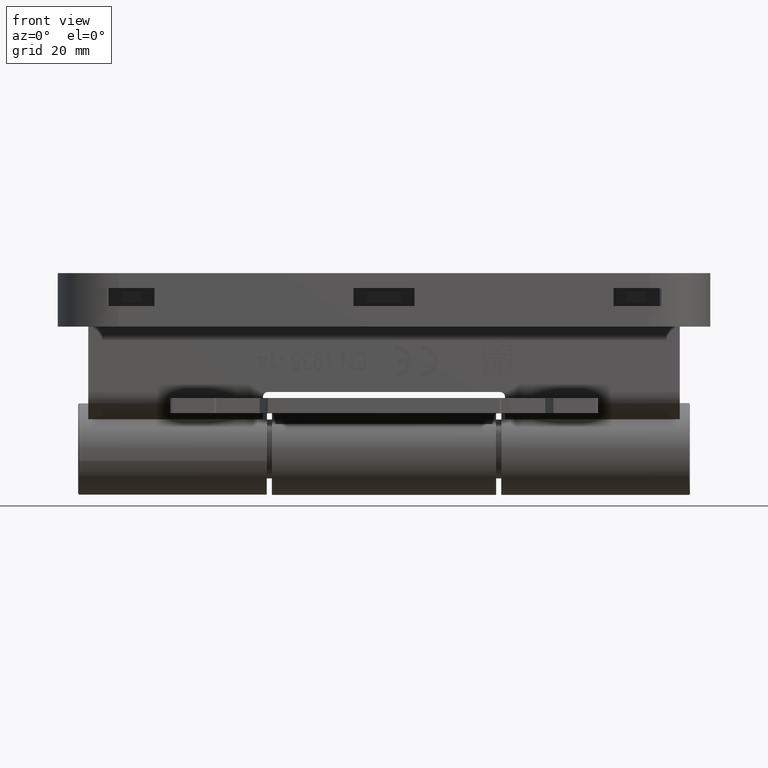
[diagram: clean part render]
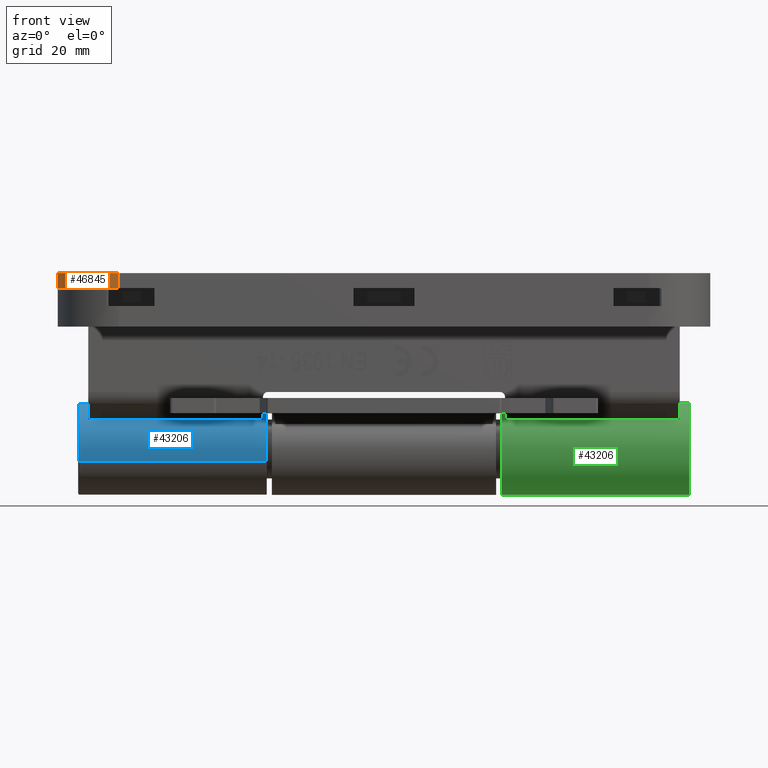
[diagram: same view with three faces highlighted in distinct colors, each labeled with its STEP entity id]
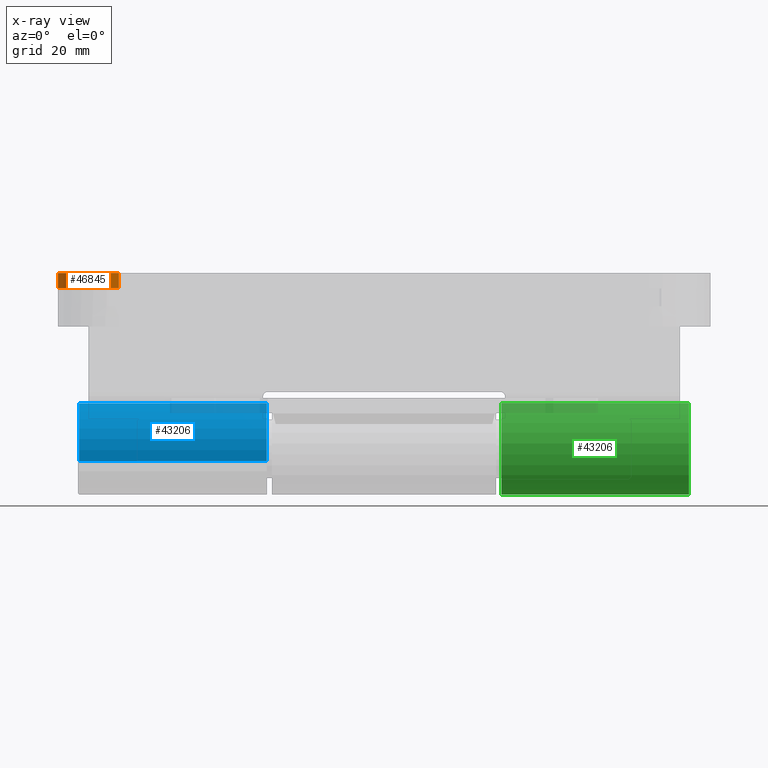
[diagram: x-ray of the same camera — body ghosted, the three highlighted faces saturated]
A machine part, front view with three faces highlighted in distinct colors.
The next image is the same camera in x-ray (body ghosted, the three faces saturated) — at least one of them is partly hidden behind the body in this view.
Their STEP definitions:

[orange] entity #46845 — the highlighted cylindrical surface (partial cylindrical patch) has radius 12 mm, axis along (-0, 0, -1).
#534 = EDGE_LOOP ( 'NONE', ( #27380, #35445, #16845, #38717 ) ) ;
#1183 = DIRECTION ( 'NONE',  ( 1.000000000000000000, 5.782411586589355667E-16, 0.000000000000000000 ) ) ;
#1203 = CARTESIAN_POINT ( 'NONE',  ( 2.775557561562891351E-14, 51.99999999999999289, 2.999999999999999112 ) ) ;
#1515 = VERTEX_POINT ( 'NONE', #1203 ) ;
#2748 = CARTESIAN_POINT ( 'NONE',  ( -11.99999999999995204, 63.99999999999997158, 2.999999999999999112 ) ) ;
#4150 = DIRECTION ( 'NONE',  ( 5.916456789157588541E-31, 1.295404630198729935E-30, 1.000000000000000000 ) ) ;
#5599 = CYLINDRICAL_SURFACE ( 'NONE', #37695, 12.00000000000000355 ) ;
#6480 = EDGE_CURVE ( 'NONE', #15949, #24367, #42023, .T. ) ;
#7132 = CIRCLE ( 'NONE', #22927, 12.00000000000000355 ) ;
#7567 = VERTEX_POINT ( 'NONE', #8538 ) ;
#8298 = CARTESIAN_POINT ( 'NONE',  ( 3.469446951953614189E-14, 51.99999999999999289, -2.760696280273786662 ) ) ;
#8538 = CARTESIAN_POINT ( 'NONE',  ( 2.775557561562891351E-14, 51.99999999999999289, 0.000000000000000000 ) ) ;
#9792 = DIRECTION ( 'NONE',  ( 5.916456789157588541E-31, 1.295404630198729935E-30, 1.000000000000000000 ) ) ;
#9996 = AXIS2_PLACEMENT_3D ( 'NONE', #37335, #9792, #13179 ) ;
#10555 = VECTOR ( 'NONE', #4150, 1000.000000000000000 ) ;
#13179 = DIRECTION ( 'NONE',  ( 1.000000000000000000, 5.782411586589355667E-16, 0.000000000000000000 ) ) ;
#14734 = VECTOR ( 'NONE', #26940, 1000.000000000000000 ) ;
#15949 = VERTEX_POINT ( 'NONE', #25667 ) ;
#16845 = ORIENTED_EDGE ( 'NONE', *, *, #29971, .F. ) ;
#21202 = CARTESIAN_POINT ( 'NONE',  ( -11.99999999999995914, 51.99999999999997158, -2.760696280273786662 ) ) ;
#22927 = AXIS2_PLACEMENT_3D ( 'NONE', #32776, #41085, #25490 ) ;
#24367 = VERTEX_POINT ( 'NONE', #2748 ) ;
#25490 = DIRECTION ( 'NONE',  ( -1.000000000000000000, -5.782411586589355667E-16, 1.224646799147347537E-16 ) ) ;
#25667 = CARTESIAN_POINT ( 'NONE',  ( -11.99999999999995559, 63.99999999999997158, 3.686287386450715076E-15 ) ) ;
#26751 = EDGE_CURVE ( 'NONE', #15949, #7567, #7132, .T. ) ;
#26940 = DIRECTION ( 'NONE',  ( 5.916456789157588541E-31, 1.295404630198729935E-30, 1.000000000000000000 ) ) ;
#27380 = ORIENTED_EDGE ( 'NONE', *, *, #6480, .T. ) ;
#29971 = EDGE_CURVE ( 'NONE', #7567, #1515, #43157, .T. ) ;
#32776 = CARTESIAN_POINT ( 'NONE',  ( -11.99999999999995914, 51.99999999999997158, 3.686287386450715076E-15 ) ) ;
#35445 = ORIENTED_EDGE ( 'NONE', *, *, #38393, .F. ) ;
#36775 = DIRECTION ( 'NONE',  ( 5.916456789157588541E-31, 1.295404630198729935E-30, 1.000000000000000000 ) ) ;
#37335 = CARTESIAN_POINT ( 'NONE',  ( -11.99999999999996270, 51.99999999999997158, 2.999999999999999112 ) ) ;
#37695 = AXIS2_PLACEMENT_3D ( 'NONE', #21202, #36775, #1183 ) ;
#38393 = EDGE_CURVE ( 'NONE', #1515, #24367, #43213, .T. ) ;
#38636 = CARTESIAN_POINT ( 'NONE',  ( -11.99999999999995204, 63.99999999999997158, -2.760696280273786662 ) ) ;
#38717 = ORIENTED_EDGE ( 'NONE', *, *, #26751, .F. ) ;
#41085 = DIRECTION ( 'NONE',  ( -1.224646799147359370E-16, -1.376982494605543984E-30, -1.000000000000000000 ) ) ;
#41206 = FACE_OUTER_BOUND ( 'NONE', #534, .T. ) ;
#42023 = LINE ( 'NONE', #38636, #14734 ) ;
#43157 = LINE ( 'NONE', #8298, #10555 ) ;
#43213 = CIRCLE ( 'NONE', #9996, 12.00000000000000355 ) ;
#46845 = ADVANCED_FACE ( 'NONE', ( #41206 ), #5599, .T. ) ;

[blue] entity #43206 — the highlighted cylindrical surface (partial cylindrical patch) has radius 9 mm, axis along (1, 0, 0).
#318 = DIRECTION ( 'NONE',  ( -1.000000000000000000, -2.457646059305950343E-16, -3.214216435727794932E-16 ) ) ;
#1443 = DIRECTION ( 'NONE',  ( -1.000000000000000000, -2.457646059305950343E-16, -3.214216435727794932E-16 ) ) ;
#4468 = DIRECTION ( 'NONE',  ( 3.854941057726237111E-16, 0.000000000000000000, 1.000000000000000000 ) ) ;
#4585 = CARTESIAN_POINT ( 'NONE',  ( 36.79999999999999716, 1.323504122493985524E-14, -8.999999999999987566 ) ) ;
#5549 = DIRECTION ( 'NONE',  ( -1.000000000000000000, -2.457646059305950343E-16, -3.214216435727794932E-16 ) ) ;
#6315 = CARTESIAN_POINT ( 'NONE',  ( 36.79999999999999716, 2.081668171172168513E-14, 9.540979117872439019E-15 ) ) ;
#6320 = CARTESIAN_POINT ( 'NONE',  ( 2.892794792155019038E-15, 0.000000000000000000, 9.000000000000005329 ) ) ;
#9108 = ORIENTED_EDGE ( 'NONE', *, *, #27924, .T. ) ;
#12524 = FACE_OUTER_BOUND ( 'NONE', #44120, .T. ) ;
#14314 = VERTEX_POINT ( 'NONE', #41698 ) ;
#17043 = CARTESIAN_POINT ( 'NONE',  ( 2.892794792155012332E-15, 1.323504122493986155E-14, -9.000000000000000000 ) ) ;
#17396 = EDGE_CURVE ( 'NONE', #14314, #36382, #25612, .T. ) ;
#18833 = AXIS2_PLACEMENT_3D ( 'NONE', #6315, #5549, #21147 ) ;
#21147 = DIRECTION ( 'NONE',  ( 0.000000000000000000, 0.000000000000000000, 1.000000000000000000 ) ) ;
#21251 = CARTESIAN_POINT ( 'NONE',  ( 25.50000000000000000, 1.497996992704707624E-14, -8.999999999999994671 ) ) ;
#22300 = ORIENTED_EDGE ( 'NONE', *, *, #17396, .T. ) ;
#24113 = VECTOR ( 'NONE', #1443, 1000.000000000000000 ) ;
#24151 = VERTEX_POINT ( 'NONE', #4585 ) ;
#24495 = VECTOR ( 'NONE', #33216, 1000.000000000000000 ) ;
#24654 = CIRCLE ( 'NONE', #18833, 9.000000000000001776 ) ;
#25132 = EDGE_CURVE ( 'NONE', #39813, #36382, #50146, .T. ) ;
#25612 = LINE ( 'NONE', #26124, #24113 ) ;
#26124 = CARTESIAN_POINT ( 'NONE',  ( 25.50000000000000355, 1.387778780781445676E-14, 9.000000000000010658 ) ) ;
#26287 = CARTESIAN_POINT ( 'NONE',  ( 0.000000000000000000, 0.000000000000000000, 0.000000000000000000 ) ) ;
#27924 = EDGE_CURVE ( 'NONE', #24151, #14314, #24654, .T. ) ;
#28591 = AXIS2_PLACEMENT_3D ( 'NONE', #26287, #49383, #42134 ) ;
#33216 = DIRECTION ( 'NONE',  ( -1.000000000000000000, -2.457646059305950343E-16, -3.214216435727794932E-16 ) ) ;
#35101 = AXIS2_PLACEMENT_3D ( 'NONE', #35918, #318, #4468 ) ;
#35918 = CARTESIAN_POINT ( 'NONE',  ( 25.50000000000000355, 1.387778780781445676E-14, 9.540979117872439019E-15 ) ) ;
#36382 = VERTEX_POINT ( 'NONE', #6320 ) ;
#39813 = VERTEX_POINT ( 'NONE', #17043 ) ;
#40077 = CYLINDRICAL_SURFACE ( 'NONE', #35101, 9.000000000000001776 ) ;
#40489 = LINE ( 'NONE', #21251, #24495 ) ;
#41698 = CARTESIAN_POINT ( 'NONE',  ( 36.79999999999999716, 2.081668171172168513E-14, 9.000000000000010658 ) ) ;
#42134 = DIRECTION ( 'NONE',  ( 3.214216435727796904E-16, 0.000000000000000000, 1.000000000000000000 ) ) ;
#43206 = ADVANCED_FACE ( 'NONE', ( #12524 ), #40077, .T. ) ;
#44120 = EDGE_LOOP ( 'NONE', ( #47086, #9108, #22300, #45035 ) ) ;
#45035 = ORIENTED_EDGE ( 'NONE', *, *, #25132, .F. ) ;
#45298 = EDGE_CURVE ( 'NONE', #24151, #39813, #40489, .T. ) ;
#47086 = ORIENTED_EDGE ( 'NONE', *, *, #45298, .F. ) ;
#49383 = DIRECTION ( 'NONE',  ( -1.000000000000000000, -2.457646059305950343E-16, -3.214216435727794932E-16 ) ) ;
#50146 = CIRCLE ( 'NONE', #28591, 9.000000000000005329 ) ;

[green] entity #43206 — the highlighted cylindrical surface (partial cylindrical patch) has radius 9 mm, axis along (-1, -0, -0).
#318 = DIRECTION ( 'NONE',  ( -1.000000000000000000, -2.457646059305950343E-16, -3.214216435727794932E-16 ) ) ;
#1443 = DIRECTION ( 'NONE',  ( -1.000000000000000000, -2.457646059305950343E-16, -3.214216435727794932E-16 ) ) ;
#4468 = DIRECTION ( 'NONE',  ( 3.854941057726237111E-16, 0.000000000000000000, 1.000000000000000000 ) ) ;
#4585 = CARTESIAN_POINT ( 'NONE',  ( 36.79999999999999716, 1.323504122493985524E-14, -8.999999999999987566 ) ) ;
#5549 = DIRECTION ( 'NONE',  ( -1.000000000000000000, -2.457646059305950343E-16, -3.214216435727794932E-16 ) ) ;
#6315 = CARTESIAN_POINT ( 'NONE',  ( 36.79999999999999716, 2.081668171172168513E-14, 9.540979117872439019E-15 ) ) ;
#6320 = CARTESIAN_POINT ( 'NONE',  ( 2.892794792155019038E-15, 0.000000000000000000, 9.000000000000005329 ) ) ;
#9108 = ORIENTED_EDGE ( 'NONE', *, *, #27924, .T. ) ;
#12524 = FACE_OUTER_BOUND ( 'NONE', #44120, .T. ) ;
#14314 = VERTEX_POINT ( 'NONE', #41698 ) ;
#17043 = CARTESIAN_POINT ( 'NONE',  ( 2.892794792155012332E-15, 1.323504122493986155E-14, -9.000000000000000000 ) ) ;
#17396 = EDGE_CURVE ( 'NONE', #14314, #36382, #25612, .T. ) ;
#18833 = AXIS2_PLACEMENT_3D ( 'NONE', #6315, #5549, #21147 ) ;
#21147 = DIRECTION ( 'NONE',  ( 0.000000000000000000, 0.000000000000000000, 1.000000000000000000 ) ) ;
#21251 = CARTESIAN_POINT ( 'NONE',  ( 25.50000000000000000, 1.497996992704707624E-14, -8.999999999999994671 ) ) ;
#22300 = ORIENTED_EDGE ( 'NONE', *, *, #17396, .T. ) ;
#24113 = VECTOR ( 'NONE', #1443, 1000.000000000000000 ) ;
#24151 = VERTEX_POINT ( 'NONE', #4585 ) ;
#24495 = VECTOR ( 'NONE', #33216, 1000.000000000000000 ) ;
#24654 = CIRCLE ( 'NONE', #18833, 9.000000000000001776 ) ;
#25132 = EDGE_CURVE ( 'NONE', #39813, #36382, #50146, .T. ) ;
#25612 = LINE ( 'NONE', #26124, #24113 ) ;
#26124 = CARTESIAN_POINT ( 'NONE',  ( 25.50000000000000355, 1.387778780781445676E-14, 9.000000000000010658 ) ) ;
#26287 = CARTESIAN_POINT ( 'NONE',  ( 0.000000000000000000, 0.000000000000000000, 0.000000000000000000 ) ) ;
#27924 = EDGE_CURVE ( 'NONE', #24151, #14314, #24654, .T. ) ;
#28591 = AXIS2_PLACEMENT_3D ( 'NONE', #26287, #49383, #42134 ) ;
#33216 = DIRECTION ( 'NONE',  ( -1.000000000000000000, -2.457646059305950343E-16, -3.214216435727794932E-16 ) ) ;
#35101 = AXIS2_PLACEMENT_3D ( 'NONE', #35918, #318, #4468 ) ;
#35918 = CARTESIAN_POINT ( 'NONE',  ( 25.50000000000000355, 1.387778780781445676E-14, 9.540979117872439019E-15 ) ) ;
#36382 = VERTEX_POINT ( 'NONE', #6320 ) ;
#39813 = VERTEX_POINT ( 'NONE', #17043 ) ;
#40077 = CYLINDRICAL_SURFACE ( 'NONE', #35101, 9.000000000000001776 ) ;
#40489 = LINE ( 'NONE', #21251, #24495 ) ;
#41698 = CARTESIAN_POINT ( 'NONE',  ( 36.79999999999999716, 2.081668171172168513E-14, 9.000000000000010658 ) ) ;
#42134 = DIRECTION ( 'NONE',  ( 3.214216435727796904E-16, 0.000000000000000000, 1.000000000000000000 ) ) ;
#43206 = ADVANCED_FACE ( 'NONE', ( #12524 ), #40077, .T. ) ;
#44120 = EDGE_LOOP ( 'NONE', ( #47086, #9108, #22300, #45035 ) ) ;
#45035 = ORIENTED_EDGE ( 'NONE', *, *, #25132, .F. ) ;
#45298 = EDGE_CURVE ( 'NONE', #24151, #39813, #40489, .T. ) ;
#47086 = ORIENTED_EDGE ( 'NONE', *, *, #45298, .F. ) ;
#49383 = DIRECTION ( 'NONE',  ( -1.000000000000000000, -2.457646059305950343E-16, -3.214216435727794932E-16 ) ) ;
#50146 = CIRCLE ( 'NONE', #28591, 9.000000000000005329 ) ;